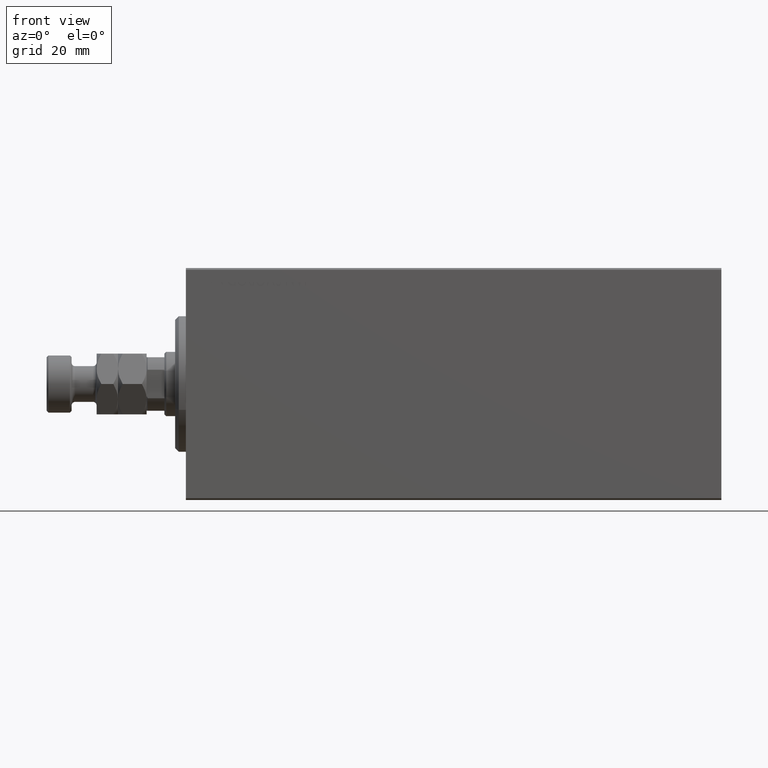
[diagram: clean part render]
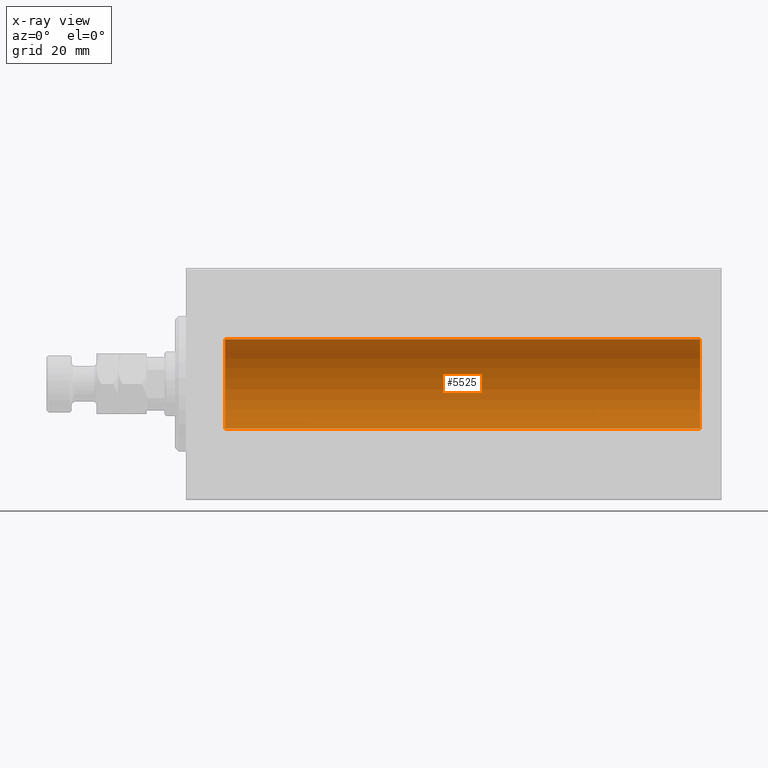
[diagram: x-ray — body ghosted, one internal face saturated and labeled with its STEP entity id]
A machine part, front view, then the same camera in x-ray: the body is ghosted and one INTERNAL B-rep face — a face not visible from any outside direction — is saturated and labeled: STEP entity #5525.
In plain terms, the highlighted cylindrical surface (partial cylindrical patch) has radius 12.5 mm, axis along (-1, -0, -0).
Its self-contained STEP definition (entity closure, byte-faithful):
#2924 = CARTESIAN_POINT ( 'NONE',  ( 144.0000000000000000, 0.000000000000000000, 12.50000000000000000 ) ) ;
#3334 = DIRECTION ( 'NONE',  ( -1.000000000000000000, -0.000000000000000000, -0.000000000000000000 ) ) ;
#3630 = ORIENTED_EDGE ( 'NONE', *, *, #19897, .F. ) ;
#4615 = DIRECTION ( 'NONE',  ( -1.000000000000000000, 0.000000000000000000, 0.000000000000000000 ) ) ;
#5523 = DIRECTION ( 'NONE',  ( 0.000000000000000000, 0.000000000000000000, 1.000000000000000000 ) ) ;
#5525 = ADVANCED_FACE ( 'NONE', ( #13005 ), #16896, .F. ) ;
#7520 = VERTEX_POINT ( 'NONE', #8893 ) ;
#8893 = CARTESIAN_POINT ( 'NONE',  ( 11.00000000000001066, 1.530808498934191521E-15, -12.50000000000000000 ) ) ;
#10356 = CARTESIAN_POINT ( 'NONE',  ( 144.0000000000000000, 0.000000000000000000, 0.000000000000000000 ) ) ;
#13005 = FACE_OUTER_BOUND ( 'NONE', #39784, .T. ) ;
#13899 = CARTESIAN_POINT ( 'NONE',  ( 144.0000000000000000, 0.000000000000000000, 0.000000000000000000 ) ) ;
#14571 = AXIS2_PLACEMENT_3D ( 'NONE', #13899, #3334, #17116 ) ;
#16732 = ORIENTED_EDGE ( 'NONE', *, *, #22284, .T. ) ;
#16896 = CYLINDRICAL_SURFACE ( 'NONE', #14571, 12.50000000000000000 ) ;
#17057 = CIRCLE ( 'NONE', #22194, 12.50000000000000000 ) ;
#17116 = DIRECTION ( 'NONE',  ( 0.000000000000000000, 0.000000000000000000, 1.000000000000000000 ) ) ;
#18922 = CARTESIAN_POINT ( 'NONE',  ( 144.0000000000000000, 1.530808498934191521E-15, -12.50000000000000000 ) ) ;
#19897 = EDGE_CURVE ( 'NONE', #22017, #7520, #25845, .T. ) ;
#22017 = VERTEX_POINT ( 'NONE', #37065 ) ;
#22194 = AXIS2_PLACEMENT_3D ( 'NONE', #23225, #4615, #5523 ) ;
#22284 = EDGE_CURVE ( 'NONE', #30303, #7520, #17057, .T. ) ;
#23225 = CARTESIAN_POINT ( 'NONE',  ( 11.00000000000001066, 0.000000000000000000, 0.000000000000000000 ) ) ;
#24155 = DIRECTION ( 'NONE',  ( -1.000000000000000000, 0.000000000000000000, 0.000000000000000000 ) ) ;
#24382 = DIRECTION ( 'NONE',  ( 0.000000000000000000, 0.000000000000000000, 1.000000000000000000 ) ) ;
#25845 = LINE ( 'NONE', #18922, #30236 ) ;
#26798 = CIRCLE ( 'NONE', #32650, 12.50000000000000000 ) ;
#27729 = EDGE_CURVE ( 'NONE', #39831, #30303, #34639, .T. ) ;
#30236 = VECTOR ( 'NONE', #43309, 1000.000000000000000 ) ;
#30303 = VERTEX_POINT ( 'NONE', #39474 ) ;
#32650 = AXIS2_PLACEMENT_3D ( 'NONE', #10356, #24155, #24382 ) ;
#32664 = EDGE_CURVE ( 'NONE', #39831, #22017, #26798, .T. ) ;
#34639 = LINE ( 'NONE', #2924, #44994 ) ;
#37065 = CARTESIAN_POINT ( 'NONE',  ( 144.0000000000000000, 1.530808498934191521E-15, -12.50000000000000000 ) ) ;
#39474 = CARTESIAN_POINT ( 'NONE',  ( 11.00000000000001066, 0.000000000000000000, 12.50000000000000000 ) ) ;
#39784 = EDGE_LOOP ( 'NONE', ( #3630, #43791, #45268, #16732 ) ) ;
#39831 = VERTEX_POINT ( 'NONE', #45196 ) ;
#41763 = DIRECTION ( 'NONE',  ( -1.000000000000000000, -0.000000000000000000, -0.000000000000000000 ) ) ;
#43309 = DIRECTION ( 'NONE',  ( -1.000000000000000000, -0.000000000000000000, -0.000000000000000000 ) ) ;
#43791 = ORIENTED_EDGE ( 'NONE', *, *, #32664, .F. ) ;
#44994 = VECTOR ( 'NONE', #41763, 1000.000000000000000 ) ;
#45196 = CARTESIAN_POINT ( 'NONE',  ( 144.0000000000000000, 0.000000000000000000, 12.50000000000000000 ) ) ;
#45268 = ORIENTED_EDGE ( 'NONE', *, *, #27729, .T. ) ;